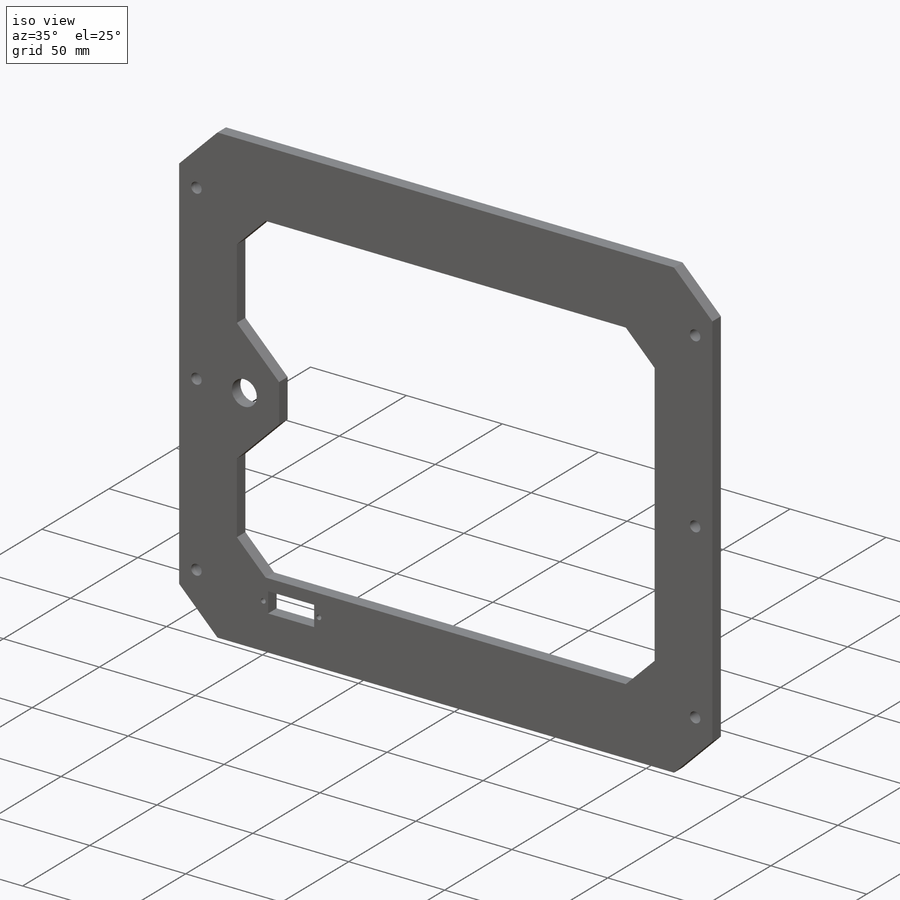
[diagram: iso view]
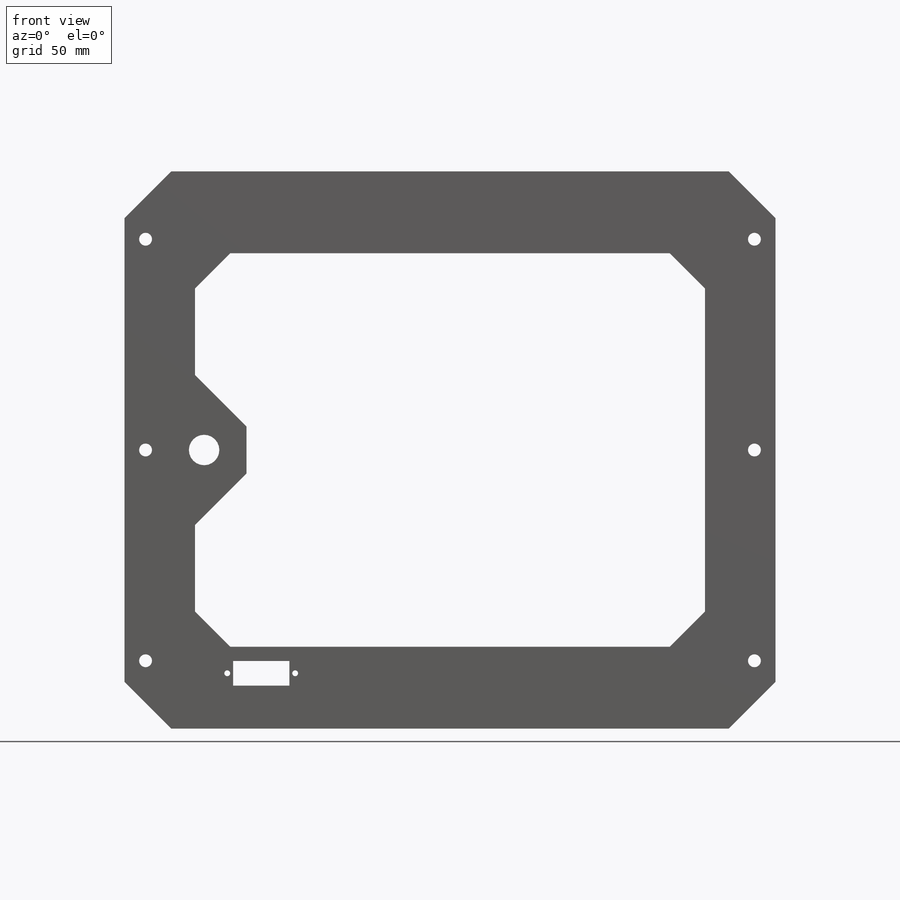
[diagram: front view]
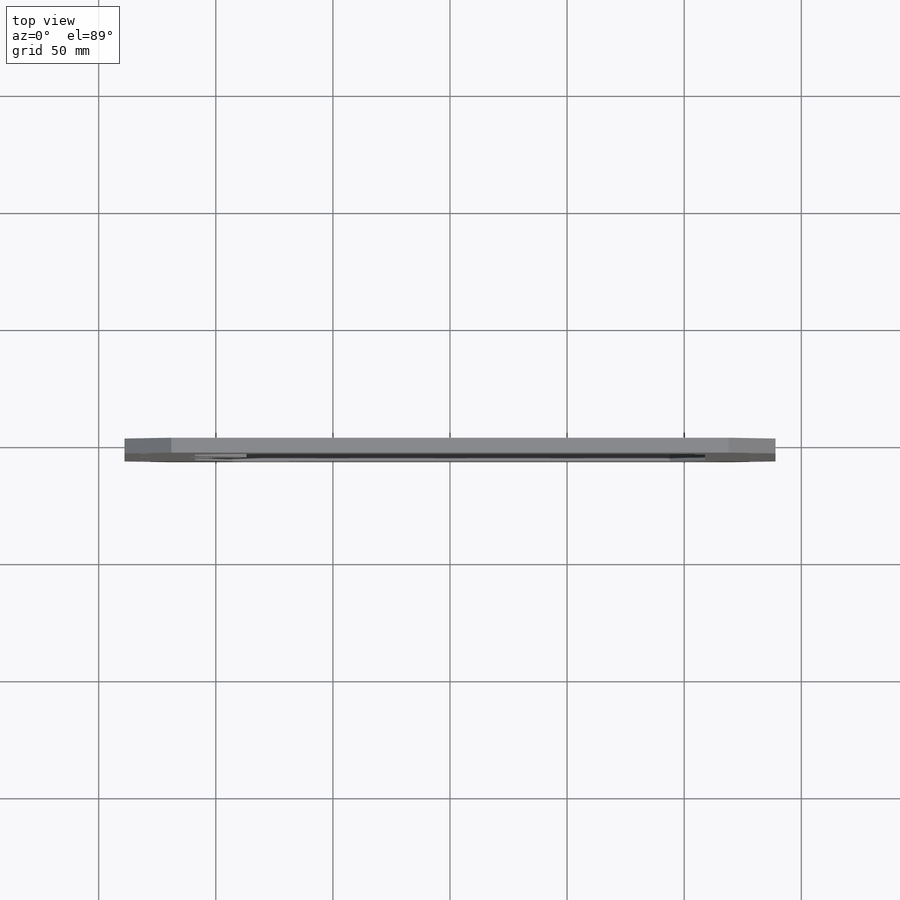
[diagram: top view]
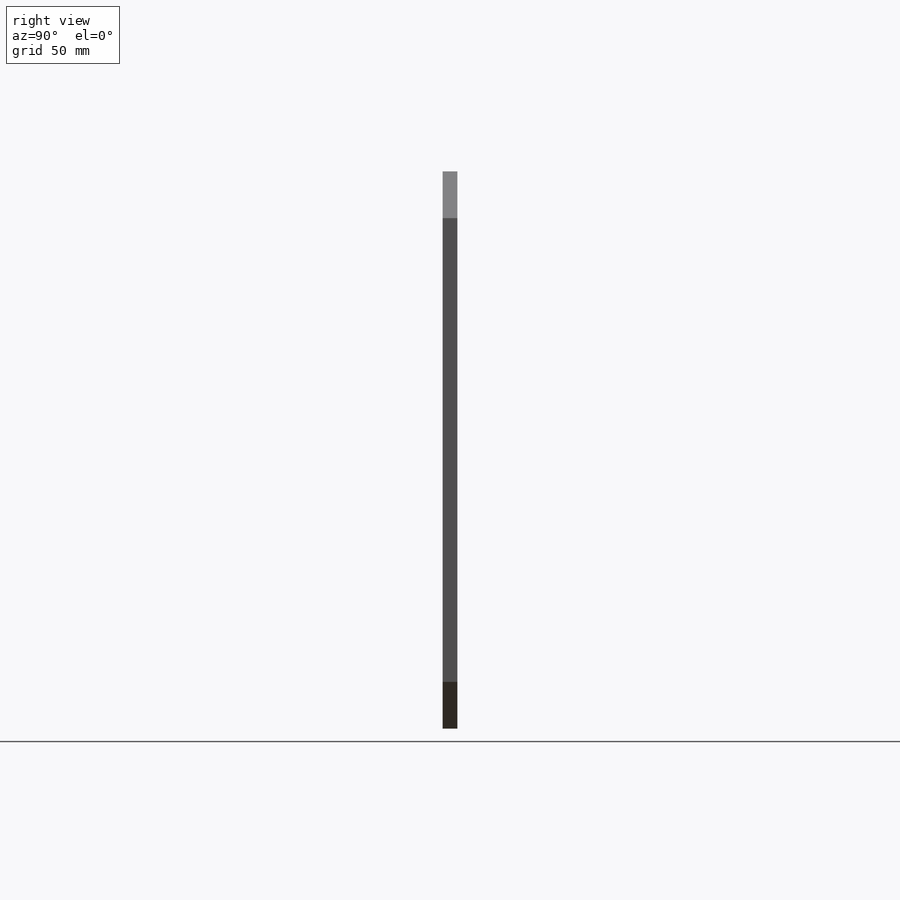
[diagram: right view]
SOLIDWORKS PART (.sldprt)
format: sldprt  version: not decoded by parser v0  size: 260,096 bytes
history: native  units: mm
features: sketch x4, cut_extrude x3, material x1, extrude x1, chamfer x1 (+13 scaffold rows collapsed)
feature tree (23):
  scaffold x13  (default folders/planes/origin — collapsed)
  material  "Material <not specified>"
  sketch  "Sketch1"  dims[D1=238.0mm D2=278.0mm]
  extrude  "Boss-Extrude1"  Depth=6.35mm
  chamfer  "Chamfer1"  Distance=20mm Angle=45deg
  sketch  "Sketch4"  dims[c1.D1=5.5mm c1.D2=5.0mm c1.D6=5.5mm c1.D7=5.5mm c1.D8=5.5mm c2.D2=85.0mm c2.D3=90.0mm c2.D4=~93.292305mm c3.D2=9.0mm c3.D4=9.0mm c3.D5=90.0mm]
  cut_extrude  "Cut-Extrude2"  Depth=76.2mm
  sketch  "Sketch5"  dims[c1.D1=13.0mm c1.D2=34.0mm c1.D3=35.0mm c1.D4=~12.884738mm c2.D4=45.0deg c2.D5=20.0mm c2.D10=22.0mm]
  cut_extrude  "Cut-Extrude3"  Depth=10mm
  sketch  "Sketch7"  dims[D2=2.5mm D1=29.0mm]
  cut_extrude  "Cut-Extrude4"  [1 undecoded]
decode coverage: 8 of 9 modeling features carry decoded parameters
note: ~ marks probable driven/reference dimensions
note: 1 parameter value undecoded
note: suppression state not decoded; provenance and decode notes live in map.json
